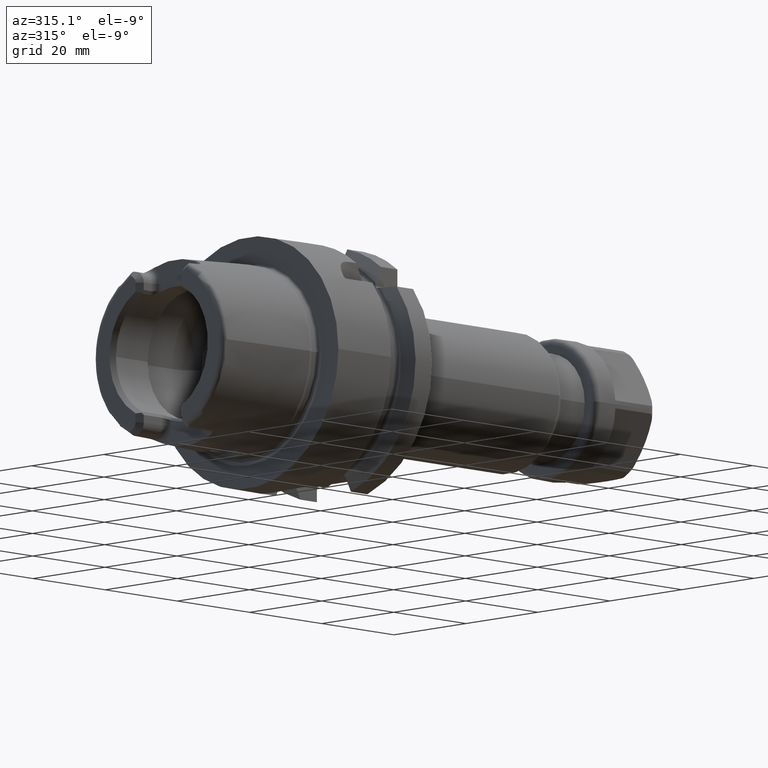
[diagram: clean part render]
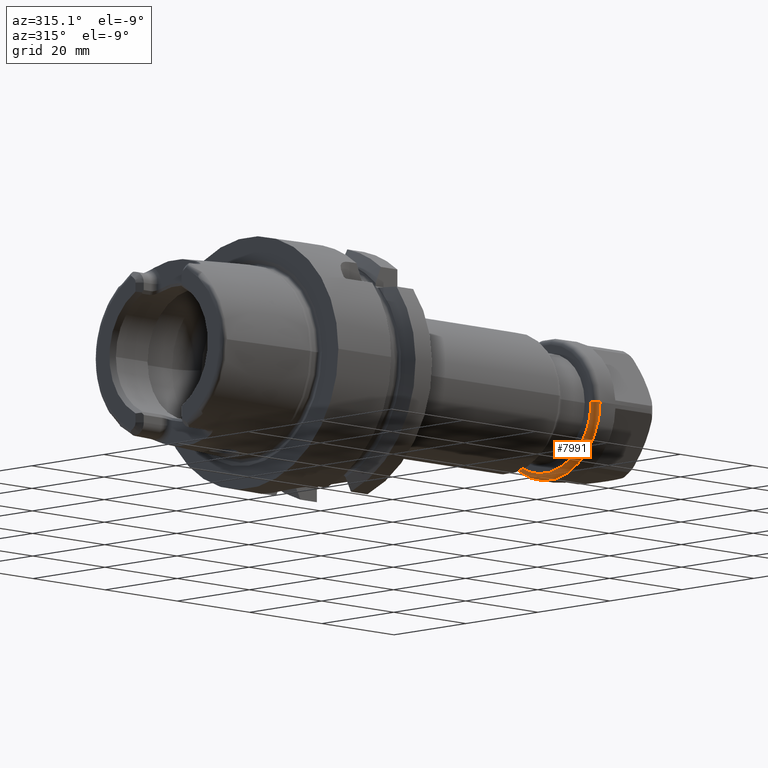
[diagram: same view with one face highlighted and labeled with its STEP entity id]
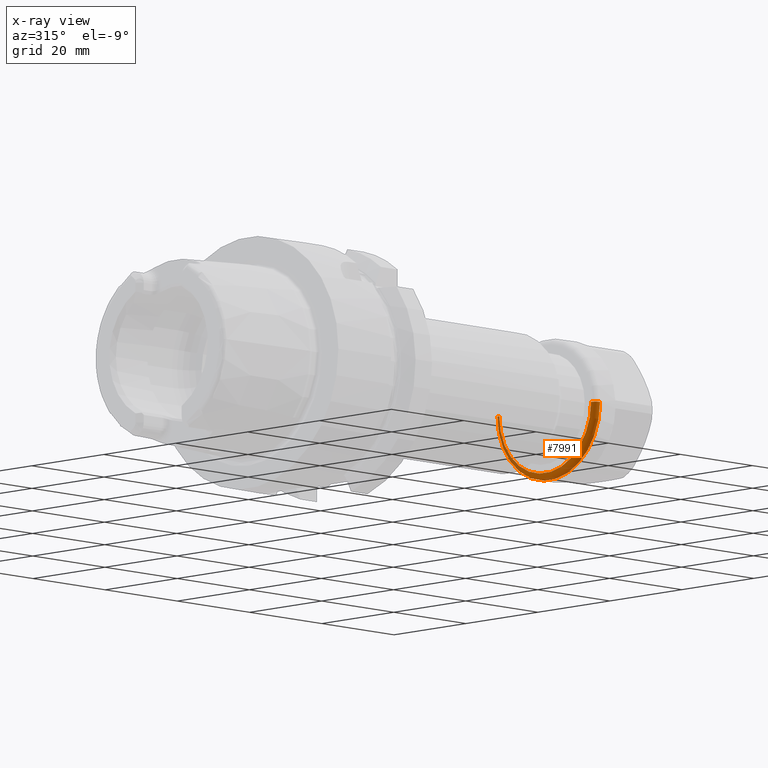
[diagram: x-ray of the same camera — body ghosted, the highlighted face saturated]
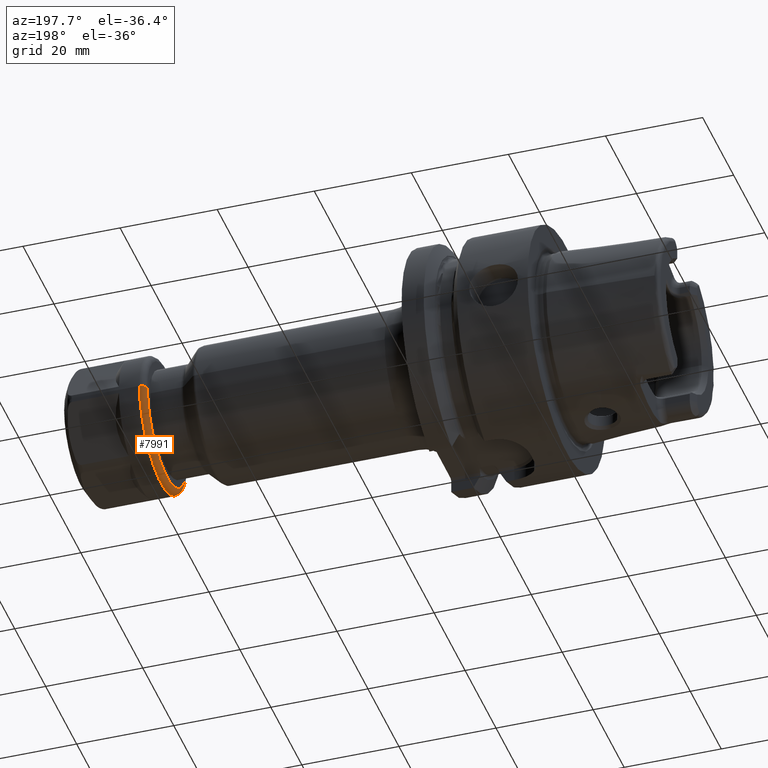
[diagram: same view with one face highlighted and labeled with its STEP entity id]
A machine part, auxiliary view. The second image highlights one B-rep face of the part: STEP entity #7991.
The next image is the same camera in x-ray: the body ghosted, the highlighted face saturated — about 13% of this face is hidden behind the body in this view.
A second angle (auxiliary view) of the same face is appended — the face is thin or edge-on in the first view.
In plain terms, the highlighted toroidal blend (fillet) surface has major radius 12.75 mm and minor (blend) radius 1.25 mm.
Its self-contained STEP definition (entity closure, byte-faithful):
#7056=CARTESIAN_POINT('',(1.25E0,0.E0,0.E0));
#7057=DIRECTION('',(-1.E0,0.E0,0.E0));
#7058=DIRECTION('',(0.E0,1.E0,0.E0));
#7059=AXIS2_PLACEMENT_3D('',#7056,#7057,#7058);
#7466=CARTESIAN_POINT('',(1.25E0,-1.275E1,0.E0));
#7467=DIRECTION('',(0.E0,0.E0,1.E0));
#7468=DIRECTION('',(-1.E0,0.E0,0.E0));
#7469=AXIS2_PLACEMENT_3D('',#7466,#7467,#7468);
#7471=CARTESIAN_POINT('',(0.E0,0.E0,0.E0));
#7472=DIRECTION('',(-1.E0,0.E0,0.E0));
#7473=DIRECTION('',(0.E0,1.E0,0.E0));
#7474=AXIS2_PLACEMENT_3D('',#7471,#7472,#7473);
#7481=CARTESIAN_POINT('',(1.25E0,1.275E1,0.E0));
#7482=DIRECTION('',(0.E0,0.E0,-1.E0));
#7483=DIRECTION('',(-1.E0,0.E0,0.E0));
#7484=AXIS2_PLACEMENT_3D('',#7481,#7482,#7483);
#7490=CARTESIAN_POINT('',(0.E0,1.275E1,0.E0));
#7491=CARTESIAN_POINT('',(0.E0,-1.275E1,0.E0));
#7492=VERTEX_POINT('',#7490);
#7493=VERTEX_POINT('',#7491);
#7494=CARTESIAN_POINT('',(1.25E0,1.4E1,0.E0));
#7495=CARTESIAN_POINT('',(1.25E0,-1.4E1,0.E0));
#7496=VERTEX_POINT('',#7494);
#7497=VERTEX_POINT('',#7495);
#7980=CARTESIAN_POINT('',(1.25E0,0.E0,0.E0));
#7981=DIRECTION('',(1.E0,0.E0,0.E0));
#7982=DIRECTION('',(0.E0,9.998782823517E-1,1.560193838733E-2));
#7983=AXIS2_PLACEMENT_3D('',#7980,#7981,#7982);
#7984=TOROIDAL_SURFACE('',#7983,1.275E1,1.25E0);
#7985=ORIENTED_EDGE('',*,*,#7974,.T.);
#7986=ORIENTED_EDGE('',*,*,#7964,.T.);
#7987=ORIENTED_EDGE('',*,*,#7658,.F.);
#7988=ORIENTED_EDGE('',*,*,#7961,.F.);
#7989=EDGE_LOOP('',(#7985,#7986,#7987,#7988));
#7990=FACE_OUTER_BOUND('',#7989,.F.);
#7991=ADVANCED_FACE('',(#7990),#7984,.T.);
#7060=CIRCLE('',#7059,1.4E1);
#7470=CIRCLE('',#7469,1.25E0);
#7475=CIRCLE('',#7474,1.275E1);
#7485=CIRCLE('',#7484,1.25E0);
#7658=EDGE_CURVE('',#7496,#7497,#7060,.T.);
#7961=EDGE_CURVE('',#7492,#7496,#7485,.T.);
#7964=EDGE_CURVE('',#7493,#7497,#7470,.T.);
#7974=EDGE_CURVE('',#7492,#7493,#7475,.T.);